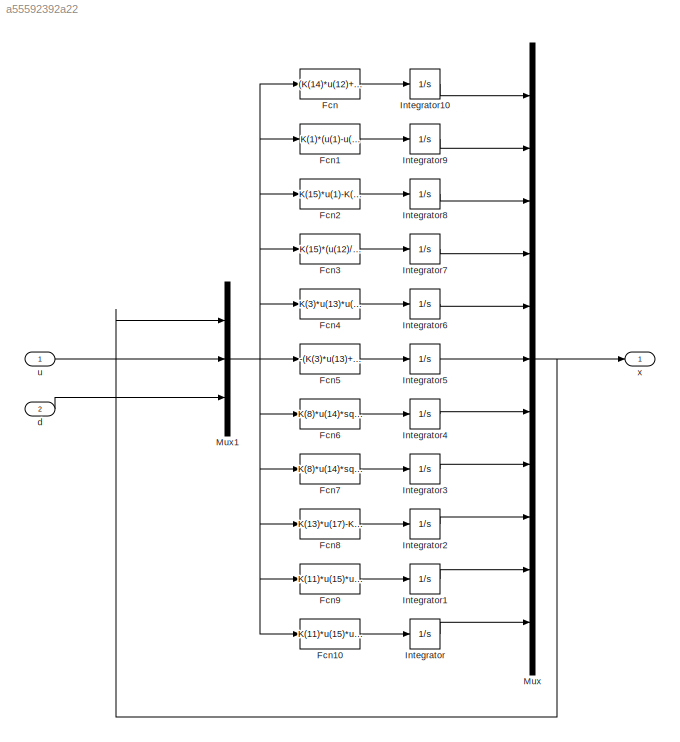
MODEL slx_a55592392a22
KIND model
CONFIG AbsTol = auto
CONFIG EnableMultiTasking = off
CONFIG FixedStep = auto
CONFIG MaxStep = auto
CONFIG MinStep = auto
CONFIG RelTol = 1e-3
CONFIG SampleTimeConstraint = Unconstrained
CONFIG Solver = VariableStepAuto
CONFIG SolverName = VariableStepAuto
CONFIG StartTime = 0.0
CONFIG StopTime = 10.0
BLOCK [Fcn] Fcn
  Expr = (K(14)*u(12)+K(1))*(u(20)-u(1))+K(1)*(u(8)-u(2))
BLOCK [Fcn] Fcn1
  Expr = K(1)*(u(1)-u(20))+(K(2)*u(21)*sqrt(u(7))-K(1))*(u(8)-u(2))
BLOCK [Fcn] Fcn10
  Expr = K(11)*u(15)*u(1)-K(11)*u(15)*u(11)-K(12)*u(11)+K(12)*u(9)
BLOCK [Fcn] Fcn2
  Expr = K(15)*u(1)-K(6)*u(14)*sqrt(u(3))
BLOCK [Fcn] Fcn3
  Expr = K(15)*(u(12)/u(3))*u(1)-(K(15)*(u(12)/u(3))+K(7)/u(3))*u(4)+K(7)*u(6)/u(3)
BLOCK [Fcn] Fcn4
  Expr = K(3)*u(13)*u(6)-K(3)*u(13)*u(5)+K(4)*u(16)
BLOCK [Fcn] Fcn5
  Expr = -(K(3)*u(13)+K(5))*u(6)+K(3)*u(13)*u(5)+K(5)*u(4)
BLOCK [Fcn] Fcn6
  Expr = K(8)*u(14)*sqrt(u(3))-K(9)*u(21)*sqrt(u(7))
BLOCK [Fcn] Fcn7
  Expr = K(8)*u(14)*sqrt((u(3))/u(7)*u(4))-K(8)*u(14)*sqrt(u(3))/u(7)*u(8)+K(10)*u(18)
BLOCK [Fcn] Fcn8
  Expr = K(13)*u(17)-K(13)*u(18)+K(13)*u(19)
BLOCK [Fcn] Fcn9
  Expr = K(11)*u(15)*u(11)-K(11)*u(15)*u(10)+K(4)*u(17)
BLOCK [Integrator] Integrator
  Ports = [1, 1]
BLOCK [Integrator] Integrator1
  Ports = [1, 1]
BLOCK [Integrator] Integrator10
  Ports = [1, 1]
BLOCK [Integrator] Integrator2
  Ports = [1, 1]
BLOCK [Integrator] Integrator3
  Ports = [1, 1]
BLOCK [Integrator] Integrator4
  Ports = [1, 1]
BLOCK [Integrator] Integrator5
  Ports = [1, 1]
BLOCK [Integrator] Integrator6
  Ports = [1, 1]
BLOCK [Integrator] Integrator7
  Ports = [1, 1]
BLOCK [Integrator] Integrator8
  Ports = [1, 1]
BLOCK [Integrator] Integrator9
  Ports = [1, 1]
BLOCK [Mux] Mux
  DisplayOption = bar
  Inputs = 11
  Ports = [11, 1]
BLOCK [Mux] Mux1
  DisplayOption = bar
  Inputs = 3
  Ports = [3, 1]
BLOCK [Inport] d
  IconDisplay = Port number
  OutDataTypeStr = double
  Port = 2
  PortDimensions = 2
BLOCK [Inport] u
  IconDisplay = Port number
  OutDataTypeStr = double
  PortDimensions = length(initial_inputs)
BLOCK [Outport] x
  IconDisplay = Port number
LINE Fcn10:1 -> Integrator:1
LINE Fcn1:1 -> Integrator9:1
LINE Fcn2:1 -> Integrator8:1
LINE Fcn3:1 -> Integrator7:1
LINE Fcn4:1 -> Integrator6:1
LINE Fcn5:1 -> Integrator5:1
LINE Fcn6:1 -> Integrator4:1
LINE Fcn7:1 -> Integrator3:1
LINE Fcn8:1 -> Integrator2:1
LINE Fcn9:1 -> Integrator1:1
LINE Fcn:1 -> Integrator10:1
LINE Integrator10:1 -> Mux:1
LINE Integrator1:1 -> Mux:10
LINE Integrator2:1 -> Mux:9
LINE Integrator3:1 -> Mux:8
LINE Integrator4:1 -> Mux:7
LINE Integrator5:1 -> Mux:6
LINE Integrator6:1 -> Mux:5
LINE Integrator7:1 -> Mux:4
LINE Integrator8:1 -> Mux:3
LINE Integrator9:1 -> Mux:2
LINE Integrator:1 -> Mux:11
NET Mux1:1 -> Fcn10:1, Fcn1:1, Fcn2:1, Fcn3:1, Fcn4:1, Fcn5:1, Fcn6:1, Fcn7:1, Fcn8:1, Fcn9:1, Fcn:1
NET Mux:1 -> Mux1:1, x:1
LINE d:1 -> Mux1:3
LINE u:1 -> Mux1:2
note: NET lines group one-source signal fan-out (src -> all destinations, sorted); 1:1 wires keep LINE
